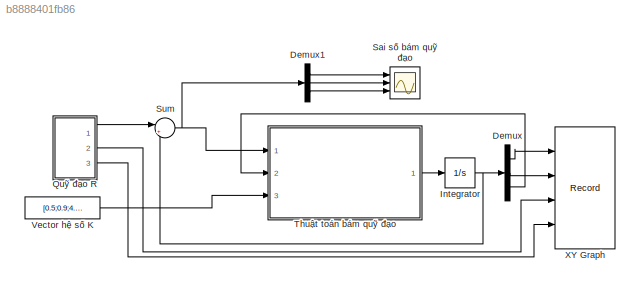
MODEL slx_b8888401fb86
KIND model
CONFIG AbsTol = auto
CONFIG EnableMultiTasking = off
CONFIG FixedStep = auto
CONFIG MaxStep = auto
CONFIG MinStep = auto
CONFIG RelTol = 1e-3
CONFIG SampleTimeConstraint = Unconstrained
CONFIG SolverName = VariableStepAuto
CONFIG StartTime = 0.0
CONFIG StopTime = 30
BLOCK [Demux] Demux
  Outputs = 3
  Ports = [1, 3]
BLOCK [Demux] Demux1
  Outputs = 3
  Ports = [1, 3]
BLOCK [Integrator] Integrator
  InitialCondition = [2.18;1;pi/2]
  Ports = [1, 1]
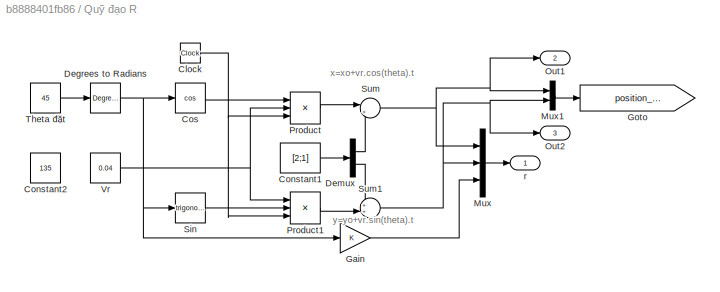
BLOCK [SubSystem] Quỹ đạo R
  Ports = [0, 3]
  RequestExecContextInheritance = off
BLOCK [Clock] Quỹ đạo R/Clock
BLOCK [Constant] Quỹ đạo R/Constant1
  Value = [2;1]
BLOCK [Constant] Quỹ đạo R/Constant2
  Value = 135
BLOCK [Trigonometry] Quỹ đạo R/Cos
  Operator = cos
  Ports = [1, 1]
BLOCK [Reference] Quỹ đạo R/Degrees to Radians  REF=simulink_extras/Transformations/Degrees to
Radians
  Ports = [1, 1]
  SourceBlock = simulink_extras/Transformations/Degrees to\nRadians
  SourceProductBaseCode = SL
  SourceType = DegreesToRadians
BLOCK [Demux] Quỹ đạo R/Demux
  Outputs = 2
  Ports = [1, 2]
BLOCK [Gain] Quỹ đạo R/Gain
BLOCK [Goto] Quỹ đạo R/Goto
  GotoTag = position_target
  TagVisibility = global
BLOCK [Mux] Quỹ đạo R/Mux
  DisplayOption = bar
  Inputs = 3
  Ports = [3, 1]
BLOCK [Mux] Quỹ đạo R/Mux1
  DisplayOption = bar
  Inputs = 2
  Ports = [2, 1]
BLOCK [Outport] Quỹ đạo R/Out1
  Port = 2
BLOCK [Outport] Quỹ đạo R/Out2
  Port = 3
BLOCK [Product] Quỹ đạo R/Product
  Inputs = 3
  Ports = [3, 1]
BLOCK [Product] Quỹ đạo R/Product1
  Inputs = 3
  Ports = [3, 1]
BLOCK [Trigonometry] Quỹ đạo R/Sin
  Ports = [1, 1]
BLOCK [Sum] Quỹ đạo R/Sum
  Inputs = |++
  Ports = [2, 1]
BLOCK [Sum] Quỹ đạo R/Sum1
  Inputs = ++|
  Ports = [2, 1]
BLOCK [Constant] Quỹ đạo R/Theta đặt
  Value = 45
BLOCK [Constant] Quỹ đạo R/Vr
  Value = 0.04
BLOCK [Outport] Quỹ đạo R/r
BLOCK [Scope] Sai số bám quỹ đạo
  Floating = off
  NumInputPorts = 3
  Ports = [3]
  ScopeSpecificationString = Simulink.scopes.TimeScopeBlockCfg('CurrentConfiguration', extmgr.ConfigurationSet(extmgr.Configuration('Core','General UI',true,'FigureColor',[1 1 1]),extmgr.Configuration('Core','Source UI',true),extmgr.Configuration('Sources','WiredSimulink',true),extmgr.Configuration('Visuals','Time Domain',true,'SerializedDisplays',{struct('MinYLimReal','-0.20302','MaxYLimReal','0.02719','YLabelReal','','MinYL...<+3172ch>
BLOCK [Sum] Sum
  Inputs = |+-
  Ports = [2, 1]
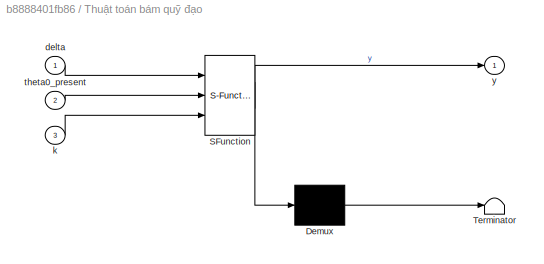
BLOCK [SubSystem] Thuật toán bám quỹ đạo
  ErrorFcn = Stateflow.Translate.translate
  PermitHierarchicalResolution = ExplicitOnly
  Ports = [3, 1]
  RequestExecContextInheritance = off
  SFBlockType = MATLAB Function
  TreatAsAtomicUnit = on
BLOCK [Demux] Thuật toán bám quỹ đạo/ Demux 
  Outputs = 1
  Ports = [1, 1]
BLOCK [S-Function] Thuật toán bám quỹ đạo/ SFunction 
  EnableBusSupport = on
  FunctionName = sf_sfun
  PortCounts = [3 2]
  Ports = [3, 2]
  SFcnIsStateOwnerBlock = off
  SFunctionDeploymentMode = off
  Tag = Stateflow S-Function 2
BLOCK [Terminator] Thuật toán bám quỹ đạo/ Terminator 
BLOCK [Inport] Thuật toán bám quỹ đạo/delta
BLOCK [Inport] Thuật toán bám quỹ đạo/k
  Port = 3
BLOCK [Inport] Thuật toán bám quỹ đạo/theta0_present
  Port = 2
BLOCK [Outport] Thuật toán bám quỹ đạo/y
  VectorParamsAs1DForOutWhenUnconnected = off
BLOCK [Constant] Vector hệ số K
  Value = [0.5;0.9;4.6]
  VectorParams1D = off
BLOCK [Record] XY Graph
  CompatibilityTag = XY
  FileSettingsInternal = {"entries":[{"content":{"excelSettings":{"content":{},"type":"Streamout.ExcelSettings"}},"type":"Streamout.FileSettingStorage","uuid":"6114f7b0-9e14-440a-81fa-28d0fd3fbdce"}],"packageUris":["http://schema.mathworks.com/mf0/streamout_blocks/R2020a"],"version":"1.0"}
  Layout = [1 1]
  Ports = [4]
  SignalsInternal = {"entries":[{"content":{"signals":[{"content":{"blockPath":["Xe_chay_theo_quy_dao_R/XY Graph"],"channel":[],"dimensions":[1],"domain":"Xe_chay_theo_quy_dao_R/XY Graph","lineColor":"#edb120","plots":[1],"port":1,"sid":[""],"signalID":4597,"signalName":"Quy dao Robot"},"type":"RecordBlkView.Signal","uuid":"0892df32-1b73-4b5b-b7ee-86954f94a307"},{"content":{"blockPath":["Xe_chay_theo_quy_dao_R/XY Gra...<+1051ch>
  VisualizationBindings = {"xyplotplugin":{"info":[{"series":[{"bindingParametersList":[{"parameter":"X-Axis","signalID":4597,"signalName":"Quy dao Robot"},{"parameter":"Y-Axis","signalID":4601,"signalName":"Quy dao Robot"}],"seriesID":14118},{"bindingParametersList":[{"parameter":"Y-Axis","signalID":4609,"signalName":"Quá»¹ Ä‘áº¡o R:3"},{"parameter":"X-Axis","signalID":4605,"signalName":"Quá»¹ Ä‘áº¡o R:2"}],"seriesID":273...<+236ch>
ANNOTATION Quỹ đạo R: x=xo+vr.cos(theta).t
ANNOTATION Quỹ đạo R: y=yo+vr.sin(theta).t
LINE Demux1:1 -> Sai số bám quỹ đạo:1
LINE Demux1:2 -> Sai số bám quỹ đạo:2
LINE Demux1:3 -> Sai số bám quỹ đạo:3
LINE Demux:1 -> XY Graph:1
LINE Demux:2 -> XY Graph:2
LINE Demux:3 -> Thuật toán bám quỹ đạo:2
NET Integrator:1 -> Demux:1, Sum:2
NET Quỹ đạo R/Clock:1 -> Quỹ đạo R/Product1:3, Quỹ đạo R/Product:3
LINE Quỹ đạo R/Constant1:1 -> Quỹ đạo R/Demux:1
LINE Quỹ đạo R/Cos:1 -> Quỹ đạo R/Product:1
NET Quỹ đạo R/Degrees to Radians:1 -> Quỹ đạo R/Cos:1, Quỹ đạo R/Gain:1, Quỹ đạo R/Sin:1
LINE Quỹ đạo R/Demux:1 -> Quỹ đạo R/Sum:2
LINE Quỹ đạo R/Demux:2 -> Quỹ đạo R/Sum1:1
LINE Quỹ đạo R/Gain:1 -> Quỹ đạo R/Mux:3
LINE Quỹ đạo R/Mux1:1 -> Quỹ đạo R/Goto:1
LINE Quỹ đạo R/Mux:1 -> Quỹ đạo R/r:1
LINE Quỹ đạo R/Product1:1 -> Quỹ đạo R/Sum1:2
LINE Quỹ đạo R/Product:1 -> Quỹ đạo R/Sum:1
LINE Quỹ đạo R/Sin:1 -> Quỹ đạo R/Product1:2
NET Quỹ đạo R/Sum1:1 -> Quỹ đạo R/Mux1:2, Quỹ đạo R/Mux:2, Quỹ đạo R/Out2:1
NET Quỹ đạo R/Sum:1 -> Quỹ đạo R/Mux1:1, Quỹ đạo R/Mux:1, Quỹ đạo R/Out1:1
LINE Quỹ đạo R/Theta đặt:1 -> Quỹ đạo R/Degrees to Radians:1
NET Quỹ đạo R/Vr:1 -> Quỹ đạo R/Product1:1, Quỹ đạo R/Product:2
LINE Quỹ đạo R:1 -> Sum:1
LINE Quỹ đạo R:2 -> XY Graph:3
LINE Quỹ đạo R:3 -> XY Graph:4
NET Sum:1 -> Demux1:1, Thuật toán bám quỹ đạo:1
LINE Thuật toán bám quỹ đạo:1 -> Integrator:1
LINE Vector hệ số K:1 -> Thuật toán bám quỹ đạo:3
note: NET lines group one-source signal fan-out (src -> all destinations, sorted); 1:1 wires keep LINE
CHART Thuật toán bám quỹ đạo states=1 transitions=1
  STATE_LABEL 'eML_blk_kernel()'
  STATE_LABEL 'SCRIPT:\nfunction y= fcn(delta,theta0_present,k)\n%#codegen\nA=[cos(theta0_present)   sin(theta0_present) 0;\n    -sin(theta0_present) cos(theta0_present) 0;\n    0                    0                    1];\ne=A*delta;\nV_c=[0.04*cos(e(3))+k(1)*e(1);\n    0+k(2)*0.04*e(2)+k(3)*0.04*sin(e(3))];\n\nMatrix=[cos(theta0_present) 0;\n        sin(theta0_present) 0;\n        0                   1];\nu=Matrix*V_c;\ny ...<+5ch>'
CHART  states=0 transitions=0
